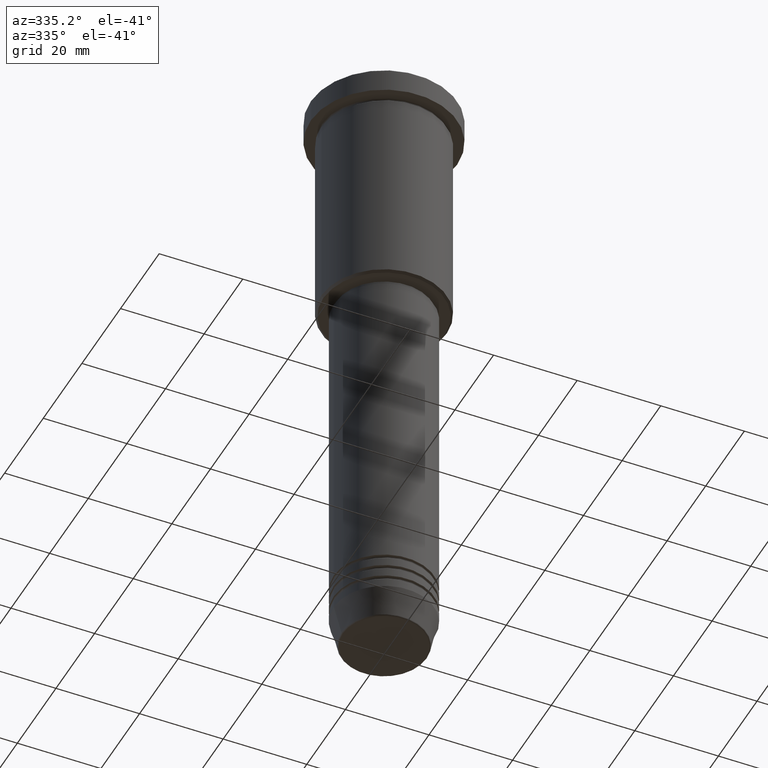
[diagram: clean part render]
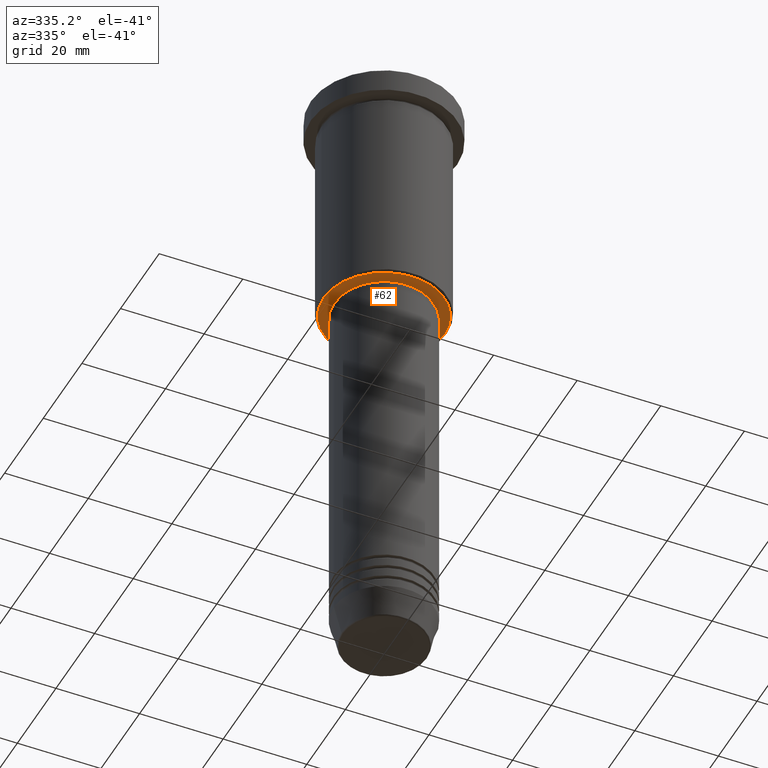
[diagram: same view with one face highlighted and labeled with its STEP entity id]
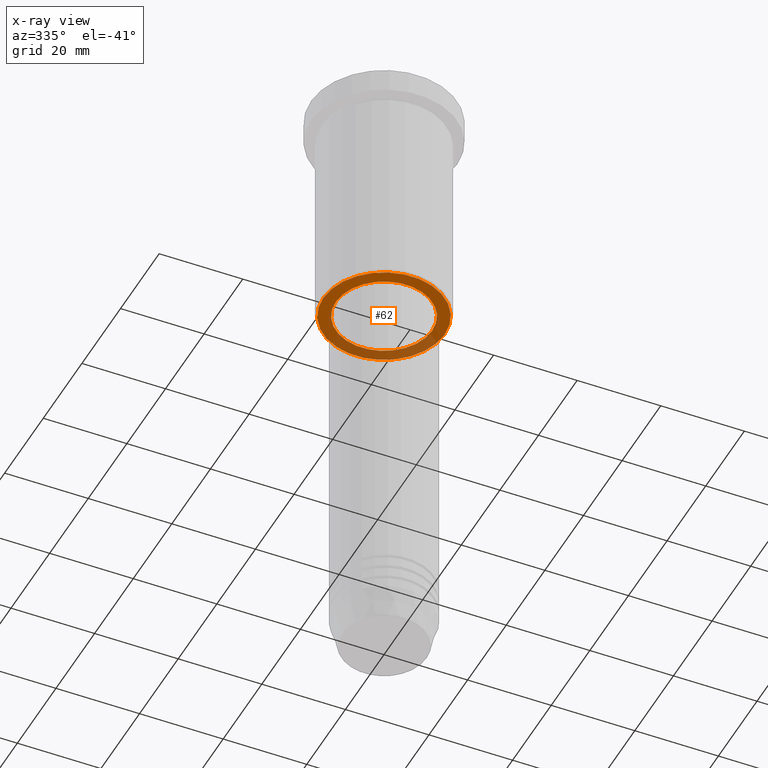
[diagram: x-ray of the same camera — body ghosted, the highlighted face saturated]
A machine part, auxiliary view. The second image highlights one B-rep face of the part: STEP entity #62.
The next image is the same camera in x-ray: the body ghosted, the highlighted face saturated — about 31% of this face is hidden behind the body in this view.
In plain terms, the highlighted planar face has unit normal (0, 0, -1).
Its self-contained STEP definition (entity closure, byte-faithful):
#44 = CIRCLE ( 'NONE', #404, 14.49999999999996980 ) ;
#51 = CARTESIAN_POINT ( 'NONE',  ( 0.000000000000000000, 0.000000000000000000, -56.00000000000000711 ) ) ;
#62 = ADVANCED_FACE ( 'NONE', ( #1117, #129 ), #488, .T. ) ;
#74 = EDGE_CURVE ( 'NONE', #1165, #848, #1109, .T. ) ;
#125 = EDGE_LOOP ( 'NONE', ( #1094, #1002 ) ) ;
#129 = FACE_BOUND ( 'NONE', #515, .T. ) ;
#131 = CARTESIAN_POINT ( 'NONE',  ( 0.000000000000000000, 0.000000000000000000, -56.00000000000000711 ) ) ;
#151 = DIRECTION ( 'NONE',  ( -0.000000000000000000, -0.000000000000000000, 1.000000000000000000 ) ) ;
#188 = DIRECTION ( 'NONE',  ( 0.000000000000000000, 0.000000000000000000, -1.000000000000000000 ) ) ;
#191 = AXIS2_PLACEMENT_3D ( 'NONE', #51, #874, #798 ) ;
#254 = AXIS2_PLACEMENT_3D ( 'NONE', #401, #151, #670 ) ;
#294 = AXIS2_PLACEMENT_3D ( 'NONE', #857, #671, #1039 ) ;
#373 = ORIENTED_EDGE ( 'NONE', *, *, #74, .T. ) ;
#376 = CARTESIAN_POINT ( 'NONE',  ( -11.50000000000000000, 1.408343819019456176E-15, -56.00000000000000711 ) ) ;
#378 = ORIENTED_EDGE ( 'NONE', *, *, #601, .T. ) ;
#401 = CARTESIAN_POINT ( 'NONE',  ( 0.000000000000000000, 0.000000000000000000, -56.00000000000000711 ) ) ;
#404 = AXIS2_PLACEMENT_3D ( 'NONE', #131, #956, #501 ) ;
#436 = CARTESIAN_POINT ( 'NONE',  ( -14.49999999999996980, 1.806354028742344224E-15, -56.00000000000000711 ) ) ;
#462 = CARTESIAN_POINT ( 'NONE',  ( 14.49999999999996980, 0.000000000000000000, -56.00000000000000711 ) ) ;
#488 = PLANE ( 'NONE',  #294 ) ;
#501 = DIRECTION ( 'NONE',  ( -1.000000000000000000, 0.000000000000000000, 0.000000000000000000 ) ) ;
#509 = CARTESIAN_POINT ( 'NONE',  ( 11.50000000000000000, 0.000000000000000000, -56.00000000000000711 ) ) ;
#515 = EDGE_LOOP ( 'NONE', ( #373, #378 ) ) ;
#601 = EDGE_CURVE ( 'NONE', #848, #1165, #941, .T. ) ;
#624 = EDGE_CURVE ( 'NONE', #796, #1021, #44, .T. ) ;
#670 = DIRECTION ( 'NONE',  ( 1.000000000000000000, 0.000000000000000000, 0.000000000000000000 ) ) ;
#671 = DIRECTION ( 'NONE',  ( 0.000000000000000000, 0.000000000000000000, -1.000000000000000000 ) ) ;
#724 = AXIS2_PLACEMENT_3D ( 'NONE', #1003, #188, #779 ) ;
#779 = DIRECTION ( 'NONE',  ( -1.000000000000000000, 0.000000000000000000, 0.000000000000000000 ) ) ;
#796 = VERTEX_POINT ( 'NONE', #462 ) ;
#798 = DIRECTION ( 'NONE',  ( 1.000000000000000000, 0.000000000000000000, 0.000000000000000000 ) ) ;
#848 = VERTEX_POINT ( 'NONE', #376 ) ;
#857 = CARTESIAN_POINT ( 'NONE',  ( 0.000000000000000000, 15.00000000000000000, -56.00000000000000711 ) ) ;
#874 = DIRECTION ( 'NONE',  ( -0.000000000000000000, -0.000000000000000000, 1.000000000000000000 ) ) ;
#941 = CIRCLE ( 'NONE', #254, 11.50000000000000000 ) ;
#942 = CIRCLE ( 'NONE', #724, 14.49999999999996980 ) ;
#944 = EDGE_CURVE ( 'NONE', #1021, #796, #942, .T. ) ;
#956 = DIRECTION ( 'NONE',  ( 0.000000000000000000, 0.000000000000000000, -1.000000000000000000 ) ) ;
#1002 = ORIENTED_EDGE ( 'NONE', *, *, #944, .T. ) ;
#1003 = CARTESIAN_POINT ( 'NONE',  ( 0.000000000000000000, 0.000000000000000000, -56.00000000000000711 ) ) ;
#1021 = VERTEX_POINT ( 'NONE', #436 ) ;
#1039 = DIRECTION ( 'NONE',  ( -1.000000000000000000, 0.000000000000000000, -0.000000000000000000 ) ) ;
#1094 = ORIENTED_EDGE ( 'NONE', *, *, #624, .T. ) ;
#1109 = CIRCLE ( 'NONE', #191, 11.50000000000000000 ) ;
#1117 = FACE_OUTER_BOUND ( 'NONE', #125, .T. ) ;
#1165 = VERTEX_POINT ( 'NONE', #509 ) ;